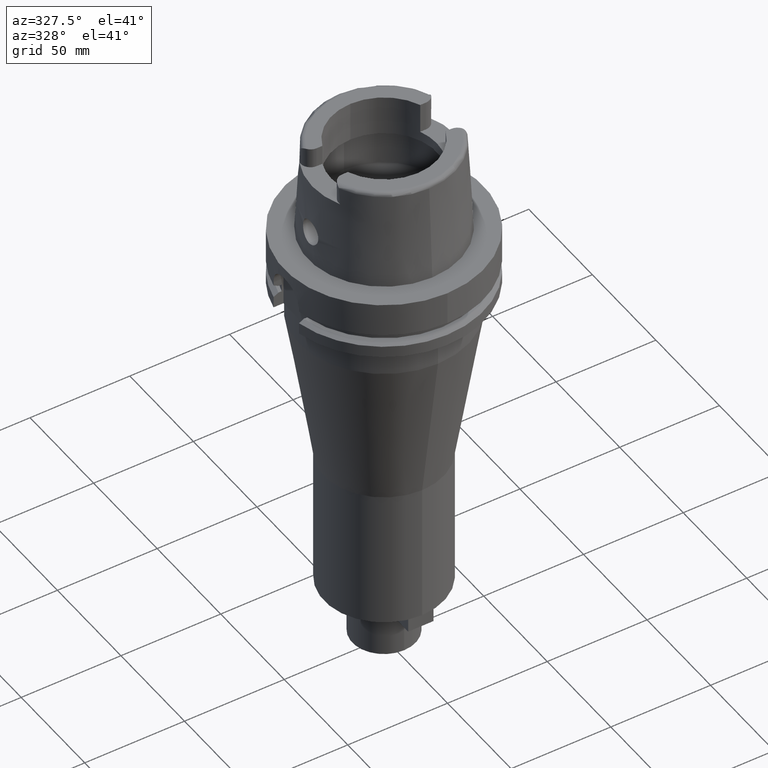
[diagram: clean part render]
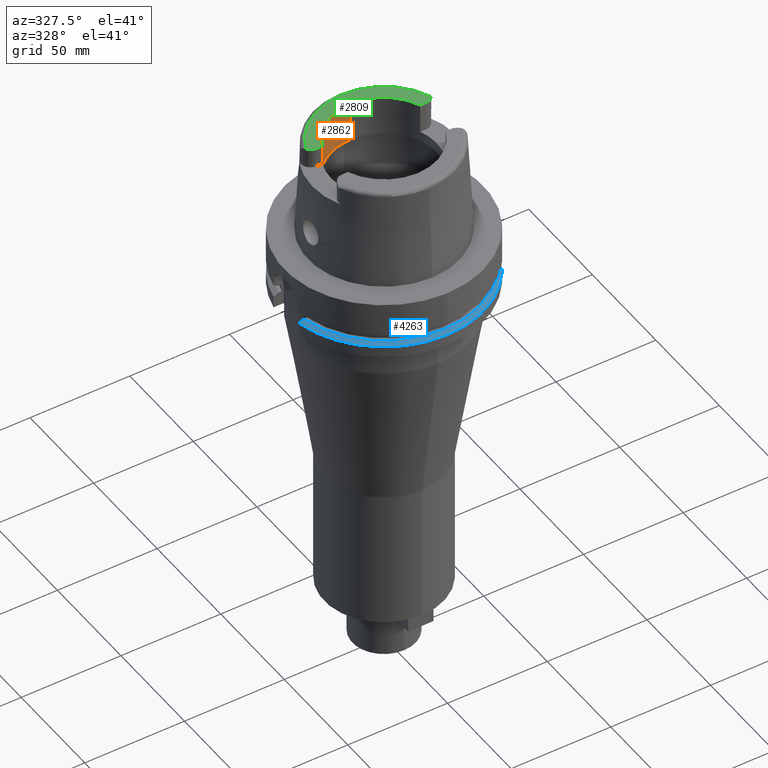
[diagram: same view with three faces highlighted in distinct colors, each labeled with its STEP entity id]
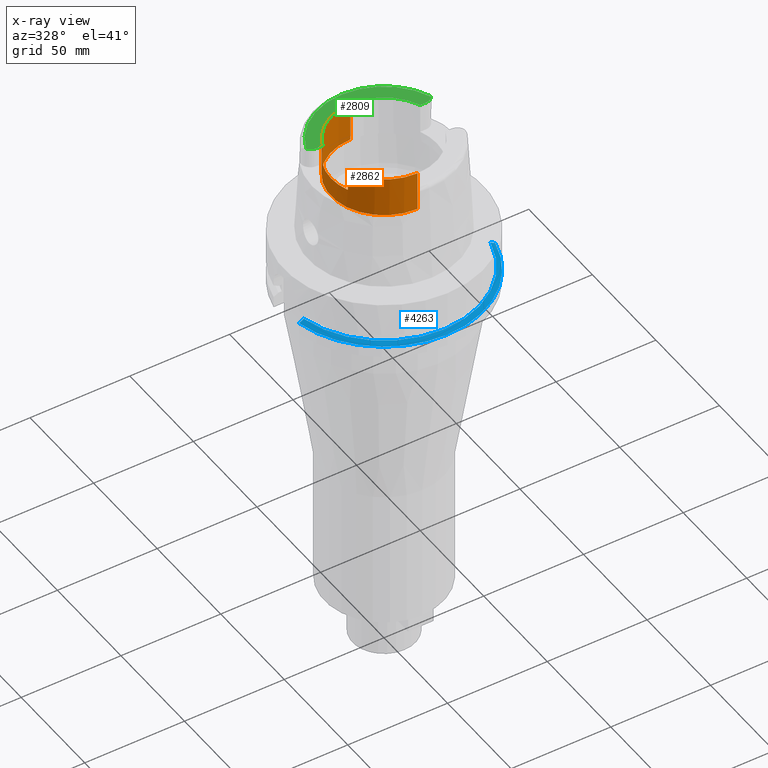
[diagram: x-ray of the same camera — body ghosted, the three highlighted faces saturated]
A machine part, auxiliary view with three faces highlighted in distinct colors.
The next image is the same camera in x-ray (body ghosted, the three faces saturated) — at least one of them is partly hidden behind the body in this view.
Their STEP definitions:

[orange] entity #2862 — the highlighted cylindrical surface (partial cylindrical patch) has radius 26.5 mm, axis along (0, 0, 1).
#50=CARTESIAN_POINT('',(0.E0,0.E0,5.E1));
#51=DIRECTION('',(0.E0,0.E0,1.E0));
#52=DIRECTION('',(0.E0,1.E0,0.E0));
#53=AXIS2_PLACEMENT_3D('',#50,#51,#52);
#79=DIRECTION('',(0.E0,0.E0,1.E0));
#80=VECTOR('',#79,1.E1);
#81=CARTESIAN_POINT('',(-2.453670515778E1,1.001E1,4.E1));
#82=LINE('',#81,#80);
#86=DIRECTION('',(0.E0,4.370575506605E-14,1.E0));
#87=VECTOR('',#86,1.999662432703E1);
#88=CARTESIAN_POINT('',(0.E0,-2.65E1,3.000337567297E1));
#89=LINE('',#88,#87);
#93=DIRECTION('',(0.E0,0.E0,-1.E0));
#94=VECTOR('',#93,1.E1);
#95=CARTESIAN_POINT('',(-2.453670515778E1,-1.001E1,5.E1));
#96=LINE('',#95,#94);
#100=CARTESIAN_POINT('',(0.E0,0.E0,4.E1));
#101=DIRECTION('',(0.E0,0.E0,1.E0));
#102=DIRECTION('',(-9.259134021805E-1,3.777358490566E-1,0.E0));
#103=AXIS2_PLACEMENT_3D('',#100,#101,#102);
#175=CARTESIAN_POINT('',(0.E0,0.E0,5.E1));
#176=DIRECTION('',(0.E0,0.E0,1.E0));
#177=DIRECTION('',(-9.259134021805E-1,-3.777358490566E-1,0.E0));
#178=AXIS2_PLACEMENT_3D('',#175,#176,#177);
#484=DIRECTION('',(0.E0,-4.370575506605E-14,1.E0));
#485=VECTOR('',#484,1.999662432703E1);
#486=CARTESIAN_POINT('',(0.E0,2.65E1,3.000337567297E1));
#487=LINE('',#486,#485);
#557=CARTESIAN_POINT('',(0.E0,0.E0,3.000337567297E1));
#558=DIRECTION('',(0.E0,0.E0,-1.E0));
#559=DIRECTION('',(0.E0,-1.E0,0.E0));
#560=AXIS2_PLACEMENT_3D('',#557,#558,#559);
#2434=CARTESIAN_POINT('',(0.E0,2.65E1,5.E1));
#2435=VERTEX_POINT('',#2434);
#2436=CARTESIAN_POINT('',(-2.453670515778E1,1.001E1,5.E1));
#2437=VERTEX_POINT('',#2436);
#2442=CARTESIAN_POINT('',(-2.453670515778E1,-1.001E1,5.E1));
#2443=VERTEX_POINT('',#2442);
#2444=CARTESIAN_POINT('',(0.E0,-2.65E1,5.E1));
#2445=VERTEX_POINT('',#2444);
#2458=CARTESIAN_POINT('',(-2.453670515778E1,1.001E1,4.E1));
#2459=VERTEX_POINT('',#2458);
#2460=CARTESIAN_POINT('',(-2.453670515778E1,-1.001E1,4.E1));
#2461=VERTEX_POINT('',#2460);
#2462=CARTESIAN_POINT('',(0.E0,2.65E1,3.000337567297E1));
#2463=VERTEX_POINT('',#2462);
#2464=CARTESIAN_POINT('',(0.E0,-2.65E1,3.000337567297E1));
#2465=VERTEX_POINT('',#2464);
#2841=CARTESIAN_POINT('',(0.E0,0.E0,-2.3875E2));
#2842=DIRECTION('',(0.E0,0.E0,1.E0));
#2843=DIRECTION('',(0.E0,1.E0,0.E0));
#2844=AXIS2_PLACEMENT_3D('',#2841,#2842,#2843);
#2845=CYLINDRICAL_SURFACE('',#2844,2.65E1);
#2847=ORIENTED_EDGE('',*,*,#2846,.F.);
#2848=ORIENTED_EDGE('',*,*,#2833,.T.);
#2849=ORIENTED_EDGE('',*,*,#2803,.F.);
#2851=ORIENTED_EDGE('',*,*,#2850,.F.);
#2853=ORIENTED_EDGE('',*,*,#2852,.F.);
#2855=ORIENTED_EDGE('',*,*,#2854,.T.);
#2857=ORIENTED_EDGE('',*,*,#2856,.F.);
#2859=ORIENTED_EDGE('',*,*,#2858,.T.);
#2860=EDGE_LOOP('',(#2847,#2848,#2849,#2851,#2853,#2855,#2857,#2859));
#2861=FACE_OUTER_BOUND('',#2860,.F.);
#54=CIRCLE('',#53,2.65E1);
#104=CIRCLE('',#103,2.65E1);
#179=CIRCLE('',#178,2.65E1);
#561=CIRCLE('',#560,2.65E1);
#2803=EDGE_CURVE('',#2435,#2437,#54,.T.);
#2833=EDGE_CURVE('',#2459,#2437,#82,.T.);
#2846=EDGE_CURVE('',#2459,#2461,#104,.T.);
#2850=EDGE_CURVE('',#2463,#2435,#487,.T.);
#2852=EDGE_CURVE('',#2465,#2463,#561,.T.);
#2854=EDGE_CURVE('',#2465,#2445,#89,.T.);
#2856=EDGE_CURVE('',#2443,#2445,#179,.T.);
#2858=EDGE_CURVE('',#2443,#2461,#96,.T.);
#2862=ADVANCED_FACE('',(#2861),#2845,.F.);

[blue] entity #4263 — the highlighted conical surface has half-angle 60 deg.
#1973=CARTESIAN_POINT('',(0.E0,0.E0,-2.1875E1));
#1974=DIRECTION('',(0.E0,0.E0,-1.E0));
#1975=DIRECTION('',(9.729578356533E-1,-2.309827916554E-1,0.E0));
#1976=AXIS2_PLACEMENT_3D('',#1973,#1974,#1975);
#1981=CARTESIAN_POINT('',(0.E0,0.E0,-2.1875E1));
#1982=DIRECTION('',(0.E0,0.E0,-1.E0));
#1983=DIRECTION('',(0.E0,-1.E0,0.E0));
#1984=AXIS2_PLACEMENT_3D('',#1981,#1982,#1983);
#1989=CARTESIAN_POINT('',(-4.898979485566E1,-1.E1,-2.324759526419E1));
#1990=CARTESIAN_POINT('',(-4.872002593966E1,-1.E1,-2.309499092031E1));
#1991=CARTESIAN_POINT('',(-4.818041161677E1,-1.E1,-2.278984413389E1));
#1992=CARTESIAN_POINT('',(-4.737076227628E1,-1.E1,-2.233230648793E1));
#1993=CARTESIAN_POINT('',(-4.683084020607E1,-1.E1,-2.202741066863E1));
#1994=CARTESIAN_POINT('',(-4.656083740330E1,-1.E1,-2.1875E1));
#1999=CARTESIAN_POINT('',(4.633477721644E1,-1.1E1,-2.1875E1));
#2000=CARTESIAN_POINT('',(4.660608588337E1,-1.1E1,-2.202740424370E1));
#2001=CARTESIAN_POINT('',(4.714858158706E1,-1.1E1,-2.233229423039E1));
#2002=CARTESIAN_POINT('',(4.796198326449E1,-1.1E1,-2.278983319675E1));
#2003=CARTESIAN_POINT('',(4.850402780016E1,-1.1E1,-2.309498594403E1));
#2004=CARTESIAN_POINT('',(4.877499359303E1,-1.1E1,-2.324759526419E1));
#2009=CARTESIAN_POINT('',(0.E0,0.E0,-2.324759526419E1));
#2010=DIRECTION('',(0.E0,0.E0,-1.E0));
#2011=DIRECTION('',(9.754998718606E-1,-2.2E-1,0.E0));
#2012=AXIS2_PLACEMENT_3D('',#2009,#2010,#2011);
#2017=CARTESIAN_POINT('',(0.E0,0.E0,-2.324759526419E1));
#2018=DIRECTION('',(0.E0,0.E0,-1.E0));
#2019=DIRECTION('',(0.E0,-1.E0,0.E0));
#2020=AXIS2_PLACEMENT_3D('',#2017,#2018,#2019);
#2664=CARTESIAN_POINT('',(-4.898979485566E1,-1.E1,-2.324759526419E1));
#2665=VERTEX_POINT('',#2664);
#2666=CARTESIAN_POINT('',(4.877499359303E1,-1.1E1,-2.324759526419E1));
#2667=CARTESIAN_POINT('',(0.E0,-5.E1,-2.324759526419E1));
#2668=VERTEX_POINT('',#2666);
#2669=VERTEX_POINT('',#2667);
#2689=CARTESIAN_POINT('',(-4.656083740330E1,-1.E1,-2.1875E1));
#2690=VERTEX_POINT('',#2689);
#2705=CARTESIAN_POINT('',(7.397396871092E-14,-4.762259526419E1,-2.1875E1));
#2706=VERTEX_POINT('',#2705);
#2707=CARTESIAN_POINT('',(4.633477721644E1,-1.1E1,-2.1875E1));
#2708=VERTEX_POINT('',#2707);
#4250=CARTESIAN_POINT('',(0.E0,0.E0,-2.256129763210E1));
#4251=DIRECTION('',(0.E0,0.E0,-1.E0));
#4252=DIRECTION('',(0.E0,-1.E0,0.E0));
#4253=AXIS2_PLACEMENT_3D('',#4250,#4251,#4252);
#4254=CONICAL_SURFACE('',#4253,4.881129763209E1,6.E1);
#4255=ORIENTED_EDGE('',*,*,#3920,.T.);
#4256=ORIENTED_EDGE('',*,*,#4245,.F.);
#4257=ORIENTED_EDGE('',*,*,#4243,.F.);
#4258=ORIENTED_EDGE('',*,*,#3865,.T.);
#4259=ORIENTED_EDGE('',*,*,#3892,.T.);
#4260=ORIENTED_EDGE('',*,*,#3890,.T.);
#4261=EDGE_LOOP('',(#4255,#4256,#4257,#4258,#4259,#4260));
#4262=FACE_OUTER_BOUND('',#4261,.F.);
#1977=CIRCLE('',#1976,4.762259526419E1);
#1985=CIRCLE('',#1984,4.762259526419E1);
#1995=B_SPLINE_CURVE_WITH_KNOTS('',3,(#1989,#1990,#1991,#1992,#1993,#1994),
.UNSPECIFIED.,.F.,.F.,(4,1,1,4),(0.E0,3.333333333333E-1,6.666666666667E-1,1.E0),
.UNSPECIFIED.);
#2005=B_SPLINE_CURVE_WITH_KNOTS('',3,(#1999,#2000,#2001,#2002,#2003,#2004),
.UNSPECIFIED.,.F.,.F.,(4,1,1,4),(0.E0,3.333333333333E-1,6.666666666667E-1,1.E0),
.UNSPECIFIED.);
#2013=CIRCLE('',#2012,5.E1);
#2021=CIRCLE('',#2020,5.E1);
#3865=EDGE_CURVE('',#2708,#2668,#2005,.T.);
#3890=EDGE_CURVE('',#2669,#2665,#2021,.T.);
#3892=EDGE_CURVE('',#2668,#2669,#2013,.T.);
#3920=EDGE_CURVE('',#2665,#2690,#1995,.T.);
#4243=EDGE_CURVE('',#2708,#2706,#1977,.T.);
#4245=EDGE_CURVE('',#2706,#2690,#1985,.T.);
#4263=ADVANCED_FACE('',(#4262),#4254,.T.);

[green] entity #2809 — the highlighted planar face has unit normal (0, 0, 1).
#17=CARTESIAN_POINT('',(-2.737E1,1.489E1,5.E1));
#18=DIRECTION('',(0.E0,0.E0,-1.E0));
#19=DIRECTION('',(0.E0,-1.E0,0.E0));
#20=AXIS2_PLACEMENT_3D('',#17,#18,#19);
#26=CARTESIAN_POINT('',(0.E0,0.E0,5.E1));
#27=DIRECTION('',(0.E0,0.E0,-1.E0));
#28=DIRECTION('',(-9.332215253018E-1,3.593015233942E-1,0.E0));
#29=AXIS2_PLACEMENT_3D('',#26,#27,#28);
#34=CARTESIAN_POINT('',(2.737E1,1.489E1,5.E1));
#35=DIRECTION('',(0.E0,0.E0,-1.E0));
#36=DIRECTION('',(8.163632566569E-1,-5.775387720150E-1,0.E0));
#37=AXIS2_PLACEMENT_3D('',#34,#35,#36);
#42=CARTESIAN_POINT('',(0.E0,0.E0,5.E1));
#43=DIRECTION('',(0.E0,0.E0,1.E0));
#44=DIRECTION('',(9.259134021805E-1,3.777358490566E-1,0.E0));
#45=AXIS2_PLACEMENT_3D('',#42,#43,#44);
#50=CARTESIAN_POINT('',(0.E0,0.E0,5.E1));
#51=DIRECTION('',(0.E0,0.E0,1.E0));
#52=DIRECTION('',(0.E0,1.E0,0.E0));
#53=AXIS2_PLACEMENT_3D('',#50,#51,#52);
#72=DIRECTION('',(1.E0,1.429464217237E-13,0.E0));
#73=VECTOR('',#72,2.833294842218E0);
#74=CARTESIAN_POINT('',(-2.737E1,1.001E1,5.E1));
#75=LINE('',#74,#73);
#2337=DIRECTION('',(1.E0,-1.423194637337E-13,0.E0));
#2338=VECTOR('',#2337,2.833294842218E0);
#2339=CARTESIAN_POINT('',(2.453670515778E1,1.001E1,5.E1));
#2340=LINE('',#2339,#2338);
#2424=CARTESIAN_POINT('',(-2.737E1,1.001E1,5.E1));
#2425=CARTESIAN_POINT('',(-3.135385269249E1,1.207161079257E1,5.E1));
#2426=VERTEX_POINT('',#2424);
#2427=VERTEX_POINT('',#2425);
#2428=CARTESIAN_POINT('',(3.135385269249E1,1.207161079257E1,5.E1));
#2429=VERTEX_POINT('',#2428);
#2430=CARTESIAN_POINT('',(2.737E1,1.001E1,5.E1));
#2431=VERTEX_POINT('',#2430);
#2432=CARTESIAN_POINT('',(2.453670515778E1,1.001E1,5.E1));
#2433=VERTEX_POINT('',#2432);
#2434=CARTESIAN_POINT('',(0.E0,2.65E1,5.E1));
#2435=VERTEX_POINT('',#2434);
#2436=CARTESIAN_POINT('',(-2.453670515778E1,1.001E1,5.E1));
#2437=VERTEX_POINT('',#2436);
#2788=CARTESIAN_POINT('',(0.E0,0.E0,5.E1));
#2789=DIRECTION('',(0.E0,0.E0,1.E0));
#2790=DIRECTION('',(0.E0,1.E0,0.E0));
#2791=AXIS2_PLACEMENT_3D('',#2788,#2789,#2790);
#2792=PLANE('',#2791);
#2794=ORIENTED_EDGE('',*,*,#2793,.T.);
#2796=ORIENTED_EDGE('',*,*,#2795,.T.);
#2798=ORIENTED_EDGE('',*,*,#2797,.T.);
#2800=ORIENTED_EDGE('',*,*,#2799,.F.);
#2802=ORIENTED_EDGE('',*,*,#2801,.T.);
#2804=ORIENTED_EDGE('',*,*,#2803,.T.);
#2806=ORIENTED_EDGE('',*,*,#2805,.F.);
#2807=EDGE_LOOP('',(#2794,#2796,#2798,#2800,#2802,#2804,#2806));
#2808=FACE_OUTER_BOUND('',#2807,.F.);
#21=CIRCLE('',#20,4.88E0);
#30=CIRCLE('',#29,3.359743838136E1);
#38=CIRCLE('',#37,4.88E0);
#46=CIRCLE('',#45,2.65E1);
#54=CIRCLE('',#53,2.65E1);
#2793=EDGE_CURVE('',#2426,#2427,#21,.T.);
#2795=EDGE_CURVE('',#2427,#2429,#30,.T.);
#2797=EDGE_CURVE('',#2429,#2431,#38,.T.);
#2799=EDGE_CURVE('',#2433,#2431,#2340,.T.);
#2801=EDGE_CURVE('',#2433,#2435,#46,.T.);
#2803=EDGE_CURVE('',#2435,#2437,#54,.T.);
#2805=EDGE_CURVE('',#2426,#2437,#75,.T.);
#2809=ADVANCED_FACE('',(#2808),#2792,.T.);